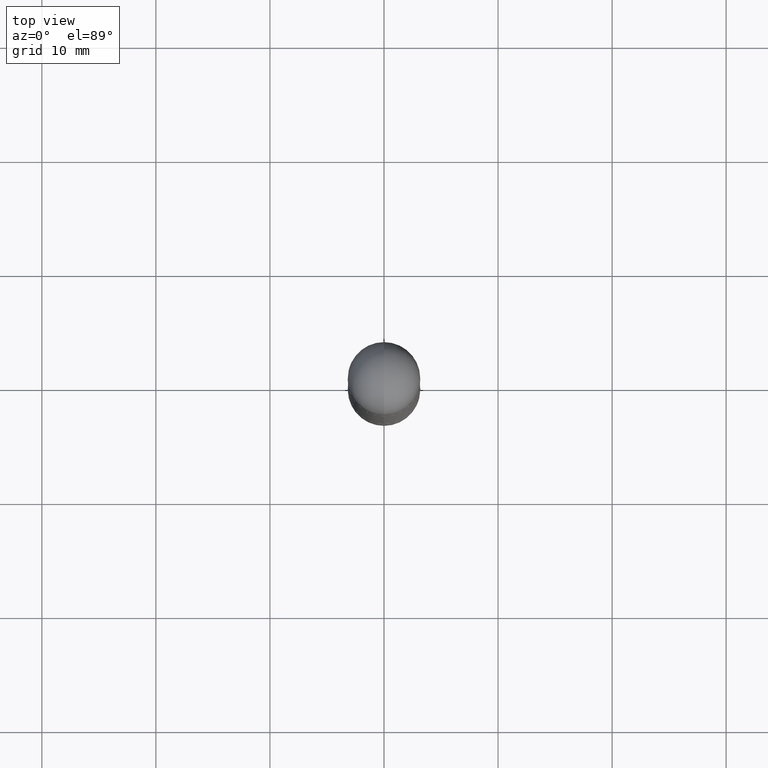
[diagram: clean part render]
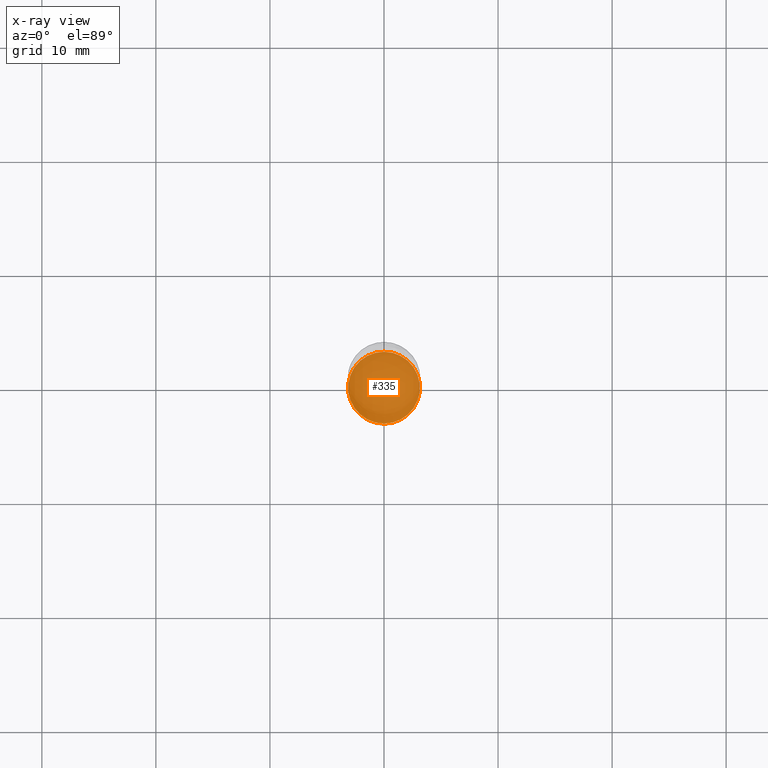
[diagram: x-ray — body ghosted, one internal face saturated and labeled with its STEP entity id]
A machine part, top view, then the same camera in x-ray: the body is ghosted and one INTERNAL B-rep face — a face not visible from any outside direction — is saturated and labeled: STEP entity #335.
In plain terms, the highlighted planar face has unit normal (-0, 0, 1).
Its self-contained STEP definition (entity closure, byte-faithful):
#3 = DIRECTION ( 'NONE',  ( -6.982962677686265922E-15, -1.000000000000000000, 4.406206441393973340E-15 ) ) ;
#11 = CIRCLE ( 'NONE', #476, 0.1239999999999999991 ) ;
#13 = DIRECTION ( 'NONE',  ( -2.445904692845178140E-29, 3.490857124336838375E-15, 1.000000000000000000 ) ) ;
#32 = DIRECTION ( 'NONE',  ( -6.982962677686265922E-15, -1.000000000000000000, 4.406206441393973340E-15 ) ) ;
#47 = EDGE_CURVE ( 'NONE', #280, #306, #730, .T. ) ;
#123 = ORIENTED_EDGE ( 'NONE', *, *, #190, .F. ) ;
#156 = CARTESIAN_POINT ( 'NONE',  ( -8.658873720330480207E-16, -0.1240000000000069796, -1.999999999999999112 ) ) ;
#158 = CARTESIAN_POINT ( 'NONE',  ( 4.891809385690355159E-29, -6.981714248673675172E-15, -1.999999999999999778 ) ) ;
#167 = AXIS2_PLACEMENT_3D ( 'NONE', #587, #651, #598 ) ;
#190 = EDGE_CURVE ( 'NONE', #306, #280, #11, .T. ) ;
#194 = CARTESIAN_POINT ( 'NONE',  ( 8.846257060213744265E-16, 0.1239999999999930186, -2.000000000000000444 ) ) ;
#280 = VERTEX_POINT ( 'NONE', #194 ) ;
#286 = FACE_OUTER_BOUND ( 'NONE', #409, .T. ) ;
#306 = VERTEX_POINT ( 'NONE', #156 ) ;
#335 = ADVANCED_FACE ( 'NONE', ( #286 ), #407, .F. ) ;
#407 = PLANE ( 'NONE',  #167 ) ;
#409 = EDGE_LOOP ( 'NONE', ( #123, #751 ) ) ;
#476 = AXIS2_PLACEMENT_3D ( 'NONE', #571, #13, #3 ) ;
#556 = DIRECTION ( 'NONE',  ( -2.445904692845178140E-29, 3.490857124336838375E-15, 1.000000000000000000 ) ) ;
#571 = CARTESIAN_POINT ( 'NONE',  ( 4.891809385690355159E-29, -6.981714248673675172E-15, -1.999999999999999778 ) ) ;
#587 = CARTESIAN_POINT ( 'NONE',  ( 4.891809385690355720E-29, -6.981714248673675961E-15, -2.000000000000000000 ) ) ;
#598 = DIRECTION ( 'NONE',  ( -6.982962677686265922E-15, -1.000000000000000000, 3.490857124336837980E-15 ) ) ;
#646 = AXIS2_PLACEMENT_3D ( 'NONE', #158, #556, #32 ) ;
#651 = DIRECTION ( 'NONE',  ( -2.445904692845177860E-29, 3.490857124336837980E-15, 1.000000000000000000 ) ) ;
#730 = CIRCLE ( 'NONE', #646, 0.1239999999999999991 ) ;
#751 = ORIENTED_EDGE ( 'NONE', *, *, #47, .F. ) ;